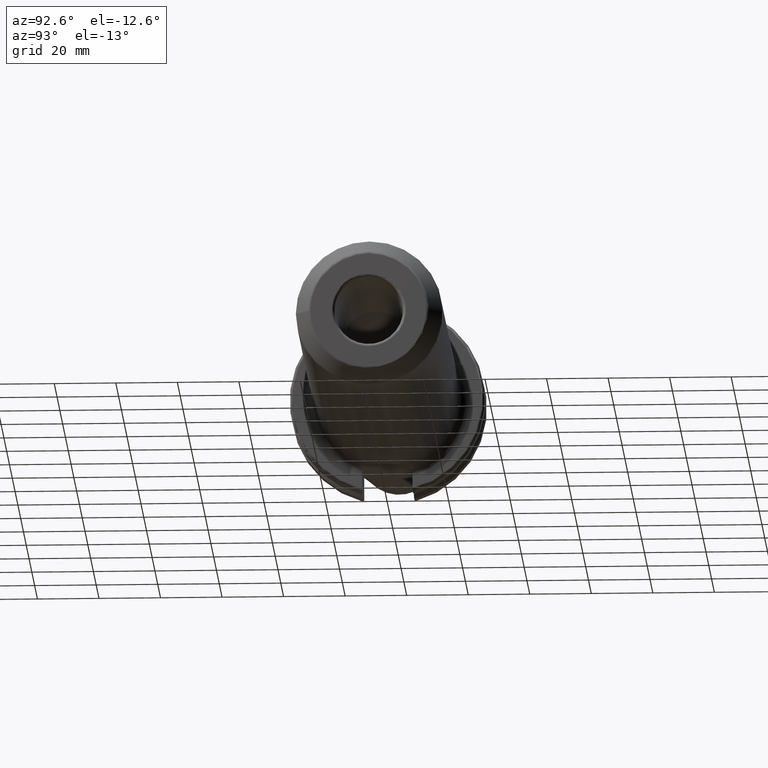
[diagram: clean part render]
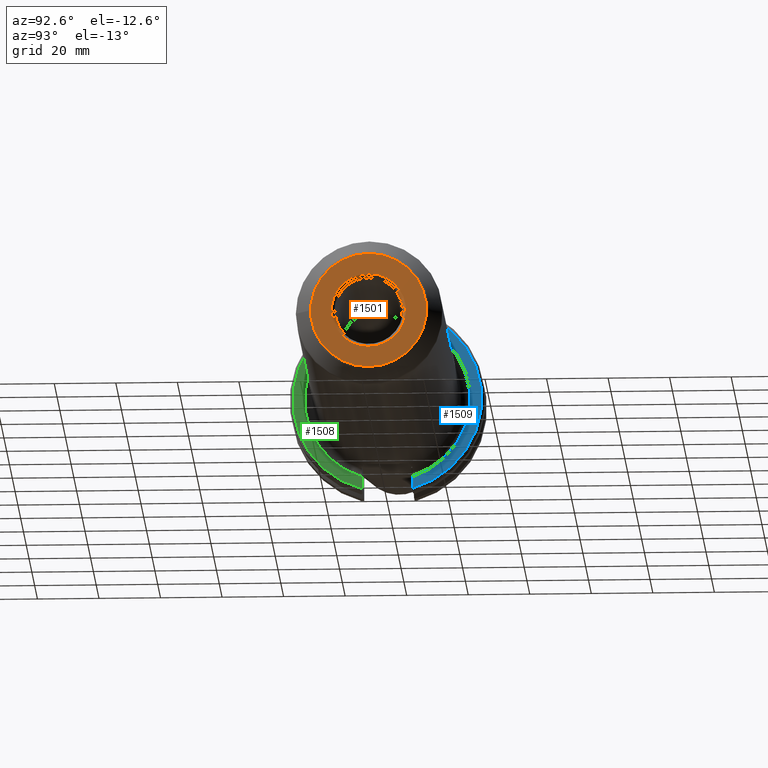
[diagram: same view with three faces highlighted in distinct colors, each labeled with its STEP entity id]
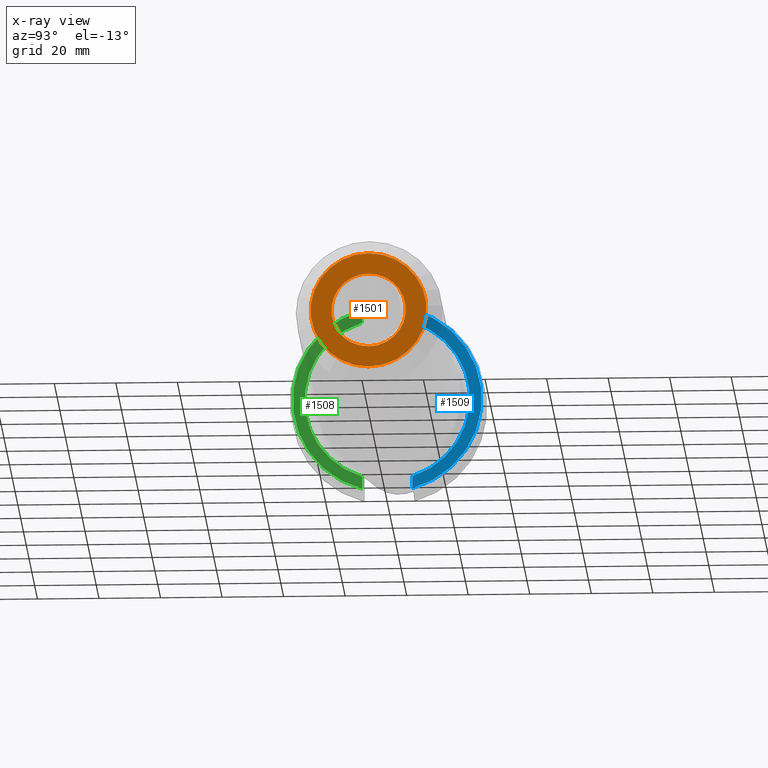
[diagram: x-ray of the same camera — body ghosted, the three highlighted faces saturated]
A machine part, auxiliary view with three faces highlighted in distinct colors.
The next image is the same camera in x-ray (body ghosted, the three faces saturated) — at least one of them is partly hidden behind the body in this view.
Their STEP definitions:

[orange] entity #1501 — the highlighted planar face has unit normal (1, 0, 0).
#300=FACE_BOUND('',#441,.T.);
#315=PLANE('',#1615);
#353=FACE_OUTER_BOUND('',#440,.T.);
#440=EDGE_LOOP('',(#1019));
#441=EDGE_LOOP('',(#1020));
#544=CIRCLE('',#1614,12.1125);
#545=CIRCLE('',#1616,18.8357864376269);
#620=VERTEX_POINT('',#2251);
#621=VERTEX_POINT('',#2255);
#779=EDGE_CURVE('',#620,#620,#544,.T.);
#780=EDGE_CURVE('',#621,#621,#545,.T.);
#1019=ORIENTED_EDGE('',*,*,#780,.F.);
#1020=ORIENTED_EDGE('',*,*,#779,.F.);
#1501=ADVANCED_FACE('',(#353,#300),#315,.T.);
#1614=AXIS2_PLACEMENT_3D('',#2253,#1803,#1804);
#1615=AXIS2_PLACEMENT_3D('',#2254,#1805,#1806);
#1616=AXIS2_PLACEMENT_3D('',#2256,#1807,#1808);
#1803=DIRECTION('center_axis',(1.,0.,0.));
#1804=DIRECTION('ref_axis',(0.,-1.,1.83697019872103E-16));
#1805=DIRECTION('center_axis',(1.,0.,0.));
#1806=DIRECTION('ref_axis',(0.,0.,-1.));
#1807=DIRECTION('center_axis',(-1.,0.,0.));
#1808=DIRECTION('ref_axis',(0.,-1.,1.83697019872103E-16));
#2251=CARTESIAN_POINT('',(152.4,-1.48335343546723E-15,12.1125));
#2253=CARTESIAN_POINT('Origin',(152.4,0.,0.));
#2254=CARTESIAN_POINT('Origin',(152.4,11.1125,0.));
#2255=CARTESIAN_POINT('',(152.4,-2.30671855702629E-15,18.8357864376269));
#2256=CARTESIAN_POINT('Origin',(152.4,0.,0.));

[blue] entity #1509 — the highlighted planar face has unit normal (1, 0, 0).
#110=LINE('',#2405,#194);
#111=LINE('',#2408,#195);
#194=VECTOR('',#1860,10.);
#195=VECTOR('',#1863,10.);
#317=PLANE('',#1638);
#361=FACE_OUTER_BOUND('',#449,.T.);
#449=EDGE_LOOP('',(#1071,#1072,#1073,#1074));
#558=CIRCLE('',#1635,26.876);
#560=CIRCLE('',#1639,30.75);
#643=VERTEX_POINT('',#2377);
#644=VERTEX_POINT('',#2386);
#648=VERTEX_POINT('',#2404);
#649=VERTEX_POINT('',#2406);
#808=EDGE_CURVE('',#643,#644,#558,.T.);
#814=EDGE_CURVE('',#643,#648,#110,.T.);
#815=EDGE_CURVE('',#649,#648,#560,.T.);
#816=EDGE_CURVE('',#649,#644,#111,.T.);
#1071=ORIENTED_EDGE('',*,*,#808,.F.);
#1072=ORIENTED_EDGE('',*,*,#814,.T.);
#1073=ORIENTED_EDGE('',*,*,#815,.F.);
#1074=ORIENTED_EDGE('',*,*,#816,.T.);
#1509=ADVANCED_FACE('',(#361),#317,.T.);
#1635=AXIS2_PLACEMENT_3D('',#2387,#1850,#1851);
#1638=AXIS2_PLACEMENT_3D('',#2403,#1858,#1859);
#1639=AXIS2_PLACEMENT_3D('',#2407,#1861,#1862);
#1850=DIRECTION('center_axis',(1.,0.,0.));
#1851=DIRECTION('ref_axis',(0.,6.12323399573677E-17,1.));
#1858=DIRECTION('center_axis',(1.,0.,0.));
#1859=DIRECTION('ref_axis',(0.,0.,-1.));
#1860=DIRECTION('',(0.,0.,-1.));
#1861=DIRECTION('center_axis',(-1.,0.,0.));
#1862=DIRECTION('ref_axis',(0.,1.,-6.12323399573677E-17));
#1863=DIRECTION('',(0.,0.,-1.));
#2377=CARTESIAN_POINT('',(19.05,8.19,-25.5977201328556));
#2386=CARTESIAN_POINT('',(19.05,8.19,25.5977201328556));
#2387=CARTESIAN_POINT('Origin',(19.05,0.,0.));
#2403=CARTESIAN_POINT('Origin',(19.05,0.,0.));
#2404=CARTESIAN_POINT('',(19.05,8.19,-29.6392712461019));
#2405=CARTESIAN_POINT('',(19.05,8.19,-11.3));
#2406=CARTESIAN_POINT('',(19.05,8.19,29.6392712461019));
#2407=CARTESIAN_POINT('Origin',(19.05,0.,0.));
#2408=CARTESIAN_POINT('',(19.05,8.19,12.5));

[green] entity #1508 — the highlighted planar face has unit normal (1, 0, 0).
#108=LINE('',#2399,#192);
#109=LINE('',#2402,#193);
#192=VECTOR('',#1854,10.);
#193=VECTOR('',#1857,10.);
#316=PLANE('',#1636);
#360=FACE_OUTER_BOUND('',#448,.T.);
#448=EDGE_LOOP('',(#1067,#1068,#1069,#1070));
#557=CIRCLE('',#1634,26.876);
#559=CIRCLE('',#1637,30.75);
#637=VERTEX_POINT('',#2330);
#638=VERTEX_POINT('',#2335);
#646=VERTEX_POINT('',#2398);
#647=VERTEX_POINT('',#2400);
#801=EDGE_CURVE('',#637,#638,#557,.T.);
#811=EDGE_CURVE('',#637,#646,#108,.T.);
#812=EDGE_CURVE('',#647,#646,#559,.T.);
#813=EDGE_CURVE('',#647,#638,#109,.T.);
#1067=ORIENTED_EDGE('',*,*,#801,.F.);
#1068=ORIENTED_EDGE('',*,*,#811,.T.);
#1069=ORIENTED_EDGE('',*,*,#812,.F.);
#1070=ORIENTED_EDGE('',*,*,#813,.T.);
#1508=ADVANCED_FACE('',(#360),#316,.T.);
#1634=AXIS2_PLACEMENT_3D('',#2336,#1848,#1849);
#1636=AXIS2_PLACEMENT_3D('',#2397,#1852,#1853);
#1637=AXIS2_PLACEMENT_3D('',#2401,#1855,#1856);
#1848=DIRECTION('center_axis',(1.,0.,0.));
#1849=DIRECTION('ref_axis',(0.,6.12323399573677E-17,1.));
#1852=DIRECTION('center_axis',(1.,0.,0.));
#1853=DIRECTION('ref_axis',(0.,0.,-1.));
#1854=DIRECTION('',(0.,0.,1.));
#1855=DIRECTION('center_axis',(-1.,0.,0.));
#1856=DIRECTION('ref_axis',(0.,-1.,1.60812264967664E-16));
#1857=DIRECTION('',(0.,0.,1.));
#2330=CARTESIAN_POINT('',(19.05,-8.19,25.5977201328556));
#2335=CARTESIAN_POINT('',(19.05,-8.19,-25.5977201328556));
#2336=CARTESIAN_POINT('Origin',(19.05,0.,0.));
#2397=CARTESIAN_POINT('Origin',(19.05,0.,0.));
#2398=CARTESIAN_POINT('',(19.05,-8.19,29.6392712461019));
#2399=CARTESIAN_POINT('',(19.05,-8.19,12.5));
#2400=CARTESIAN_POINT('',(19.05,-8.19,-29.6392712461019));
#2401=CARTESIAN_POINT('Origin',(19.05,0.,0.));
#2402=CARTESIAN_POINT('',(19.05,-8.19,-11.3));